MODEL slx_a45d39ea9397
KIND model
CONFIG AbsTol = auto
CONFIG EnableMultiTasking = off
CONFIG FixedStep = 0.001
CONFIG InitFcn = , if any(exist('rtifpga_mdlclblib', 'file') ~= 0), rtifpga_mdlclblib('Init', bdroot); end,\n
CONFIG MaxStep = auto
CONFIG MinStep = auto
CONFIG PostLoadFcn = , if any(exist('dsrtsu_mdlpostloadfcn', 'file') ~= 0), dsrtsu_mdlpostloadfcn('Execute', bdroot); end, \n
CONFIG RelTol = 1e-3
CONFIG SampleTimeConstraint = Unconstrained
CONFIG SolverName = ode1
CONFIG StartTime = 0.0
CONFIG StopTime = Inf
BLOCK [Outport]  Electric Power, Watt
  Port = 12
BLOCK [Gain]  Use Draft force (GUI switch)
  Gain = 0
BLOCK [Gain]  Use Feedbackward (GUI switch)
  Gain = 0
BLOCK [Gain]  Use Feedforward (GUI switch)
  Gain = 0
BLOCK [Gain]  Use Mag cancellation (GUI switch)
  Gain = 0
BLOCK [Gain]  Use Sweep (GUI switch)
  Gain = 0
BLOCK [SubSystem] Accelerometer
BLOCK [Outport] Accelerometer Acceleration, m//s^2
  Port = 27
BLOCK [Outport] Accelerometer Voltage, V
  Port = 26
BLOCK [Constant] Accelerometer/Acc Button
  NameLocation = left
  Value = 0
BLOCK [Reference] Accelerometer/Accelerometer  REF=rti1202lib_adc_class1/ADC_CLASS1_BL1
  SourceBlock = rti1202lib_adc_class1/ADC_CLASS1_BL1
  SourceType = RTI
BLOCK [Outport] Accelerometer/Accelerometer Acceleration, m//s^2
  Port = 2
BLOCK [Outport] Accelerometer/Accelerometer Voltage, V
BLOCK [DataStoreMemory] Accelerometer/Data Store Memory
  DataStoreName = Vo
  ShowAdditionalParam = off
  WriteAfterWriteMsg = warning
BLOCK [Gain] Accelerometer/Gain
  Gain = 9.9172
BLOCK [Gain] Accelerometer/Gain1
  Gain = 10
BLOCK [DataStoreRead] Accelerometer/Offset Voltage, V
  DataStoreName = Vo
  IndexOptions = Index vector (dialog)
  Indices = 1
  OutputSizes = 1
BLOCK [Sum] Accelerometer/Sum
  Inputs = +-
BLOCK [TransferFcn] Accelerometer/Transfer Fcn
  Denominator = [1 20]
  Numerator = [20]
BLOCK [SubSystem] Accelerometer/Triggered Subsystem
  TreatAsAtomicUnit = on
BLOCK [DataStoreWrite] Accelerometer/Triggered Subsystem/Data Store Write
  DataStoreName = Vo
  IndexOptions = Index vector (dialog)
  Indices = 1
  OutputSizes = 1
BLOCK [Inport] Accelerometer/Triggered Subsystem/In1
BLOCK [TriggerPort] Accelerometer/Triggered Subsystem/Trigger
  StatesWhenEnabling = held
  VariantControl = (inherit)
BLOCK [Outport] Actuation Force, N
  Port = 8
BLOCK [Outport] AnalogDisplacementLaser, mm
  Port = 22
BLOCK [Outport] Ch1_User input Force Cmd, N
  NameLocation = right
  Port = 6
BLOCK [Outport] Ch2_Pos_LT, mm
  NameLocation = right
  Port = 16
BLOCK [Outport] Ch2_Pos_LT, mm1
  Port = 25
BLOCK [Outport] Ch3_FConstant_LT, N//Amp
  NameLocation = right
  Port = 7
BLOCK [Reference] Current Cmd to LCAM  REF=rti1202lib_dac_class1/DAC_CLASS1_BL1
  SourceBlock = rti1202lib_dac_class1/DAC_CLASS1_BL1
  SourceType = RTI
BLOCK [Saturate] Current Saturation 
  LowerLimit = -Current_Limit.max
  UpperLimit = Current_Limit.max
BLOCK [Reference] DIO Trigger Enable  REF=rti1202lib_dio_class1/DIO_CLASS1_BIT_OUT_BL1
  Commented = on
  SourceBlock = rti1202lib_dio_class1/DIO_CLASS1_BIT_OUT_BL1
  SourceType = RTI
BLOCK [SubSystem] Draft Force 
  VariantControl = FF_FCONS_VSS
BLOCK [Constant] Draft Force /Buoy Draft Adjuster
  Commented = on
  Value = ff.draft
BLOCK [Product] Draft Force /Divide2
  Inputs = */
BLOCK [Constant] Draft Force /Draft_Force_cmd_N
  Value = 0
BLOCK [Outport] Draft Force /FF Current Cmd, A
BLOCK [SubSystem] Draft Force /Lookup - Slope
BLOCK [Lookup_n-D] Draft Force /Lookup - Slope/Lookup with Linear Lagrange Interpolation
  BreakpointsForDimension1 = xData
  InputPortMap = u0
  InternalRulePriority = Speed
  InterpMethod = Linear Lagrange
  NumberOfTableDimensions = 1
  RndMeth = Simplest
  Table = yData
BLOCK [Inport] Draft Force /Lookup - Slope/Position Input, mm
BLOCK [Outport] Draft Force /Lookup - Slope/Slope (N//amp)
BLOCK [Inport] Draft Force /Position
BLOCK [Saturate] Draft Force /Saturation1
  LowerLimit = -fIN.Forcemax
  UpperLimit = fIN.Forcemax
BLOCK [TransferFcn] Draft Force /smoother
  Commented = through
  Denominator = [1 2]
  Numerator = 2
BLOCK [TransferFcn] Draft Force /smoother1
  Commented = through
  Denominator = [1 2]
  Numerator = 2
BLOCK [Gain] Dspace Gain
  Commented = on
  Gain = 10
BLOCK [Outport] Electric Energy, Joule 
  Port = 11
BLOCK [Constant] Enable Switch
  Commented = on
BLOCK [SubSystem] Feedbackward Current
  Variant = on
BLOCK [Outport] Feedbackward Current/Actuation Force, N
  Port = 2
BLOCK [SubSystem] Feedbackward Current/Damping Feedback
  VariantControl = FB_Damp_VSS
BLOCK [Outport] Feedbackward Current/Damping Feedback/Actuation Force, N
  Port = 2
BLOCK [Inport] Feedbackward Current/Damping Feedback/Disp, mm
BLOCK [Product] Feedbackward Current/Damping Feedback/Divide2
  Inputs = */
BLOCK [Outport] Feedbackward Current/Damping Feedback/Energy, Joule 
  Port = 3
BLOCK [Outport] Feedbackward Current/Damping Feedback/FB Current Cmd, A
BLOCK [Integrator] Feedbackward Current/Damping Feedback/Integrator
BLOCK [Gain] Feedbackward Current/Damping Feedback/Kd Gain
  Gain = 0
BLOCK [SubSystem] Feedbackward Current/Damping Feedback/Lookup table2
BLOCK [Lookup_n-D] Feedbackward Current/Damping Feedback/Lookup table2/Lookup with Linear Lagrange Interpolation
  BreakpointsForDimension1 = xData
  InputPortMap = u0
  InternalRulePriority = Speed
  InterpMethod = Linear Lagrange
  NumberOfTableDimensions = 1
  RndMeth = Simplest
  Table = yData
BLOCK [Inport] Feedbackward Current/Damping Feedback/Lookup table2/Position Input, mm
BLOCK [Outport] Feedbackward Current/Damping Feedback/Lookup table2/Slope (N//amp)
BLOCK [Product] Feedbackward Current/Damping Feedback/Multiply
  Inputs = **
BLOCK [Outport] Feedbackward Current/Damping Feedback/Power, Watt
  Port = 4
BLOCK [Saturate] Feedbackward Current/Damping Feedback/Saturation1
  LowerLimit = -fIN.Forcemax
  UpperLimit = fIN.Forcemax
BLOCK [TransferFcn] Feedbackward Current/Damping Feedback/Transfer Fcn
  Denominator = [1/20 1]
  Numerator = [1 0]
BLOCK [Outport] Feedbackward Current/Damping Feedback/Velocity, m//s
  Port = 5
BLOCK [Gain] Feedbackward Current/Damping Feedback/mm to m
  Gain = 0.001
  NameLocation = right
BLOCK [Inport] Feedbackward Current/Disp, mm
BLOCK [Outport] Feedbackward Current/Energy, Joule 
  Port = 3
BLOCK [Outport] Feedbackward Current/FB Current Cmd, A
BLOCK [Outport] Feedbackward Current/Power, Watt
  Port = 4
BLOCK [SubSystem] Feedbackward Current/Velocity Feedback
  VariantControl = FB_SPED_VSS
BLOCK [Inport] Feedbackward Current/Velocity Feedback/Disp, mm
BLOCK [Outport] Feedbackward Current/Velocity Feedback/FB Current Cmd, A
BLOCK [Gain] Feedbackward Current/Velocity Feedback/Kv
  Gain = fb.k
BLOCK [Gain] Feedbackward Current/Velocity Feedback/LCAM Gain
  Gain = lcam.gain
BLOCK [Derivative] Feedbackward Current/Velocity Feedback/d//dt
BLOCK [Outport] Feedbackward Current/Velocity, m//s
  Port = 5
BLOCK [SubSystem] Feedbackward Current/Zero
  VariantControl = FB_ZERO_VSS
BLOCK [Inport] Feedbackward Current/Zero/Disp, mm
BLOCK [Outport] Feedbackward Current/Zero/FB Current Cmd, A
BLOCK [Gain] Feedbackward Current/Zero/Gain
  Gain = 0
BLOCK [SubSystem] Feedforward
  Variant = on
BLOCK [Inport] Feedforward/Button Press
BLOCK [Outport] Feedforward/Ch1_User input Force Cmd, N
  Port = 2
BLOCK [Outport] Feedforward/Ch2_Pos_LT, mm
  Port = 4
BLOCK [Outport] Feedforward/Ch3_FConstant_LT, N//Amp
  Port = 3
BLOCK [SubSystem] Feedforward/Constant
  VariantControl = FF_CONS_VSS
BLOCK [Inport] Feedforward/Constant/Button Press
BLOCK [Gain] Feedforward/Constant/Current Cmd, A
  Gain = 0
BLOCK [Outport] Feedforward/Constant/Smoothed Current Cmd, A
BLOCK [Terminator] Feedforward/Constant/Terminator
BLOCK [Inport] Feedforward/Constant/Time
  Port = 2
BLOCK [TransferFcn] Feedforward/Constant/smoother
  Denominator = [1 2]
  Numerator = 2
BLOCK [TransferFcn] Feedforward/Constant/smoother1
  Denominator = [1 2]
  Numerator = 2
BLOCK [SubSystem] Feedforward/FConstant
  VariantControl = FF_FCONS_VSS
BLOCK [Inport] Feedforward/FConstant/Button Press
BLOCK [Outport] Feedforward/FConstant/Ch1_User input Force Cmd, N
  Port = 2
BLOCK [Gain] Feedforward/FConstant/Const Force Gain
  Gain = 0
BLOCK [Product] Feedforward/FConstant/Divide2
  Inputs = */
BLOCK [SubSystem] Feedforward/FConstant/Lookup - Slope
BLOCK [Lookup_n-D] Feedforward/FConstant/Lookup - Slope/Lookup with Linear Lagrange Interpolation
  BreakpointsForDimension1 = xData
  InputPortMap = u0
  InternalRulePriority = Speed
  InterpMethod = Linear Lagrange
  NumberOfTableDimensions = 1
  RndMeth = Simplest
  Table = yData
BLOCK [Inport] Feedforward/FConstant/Lookup - Slope/Position Input, mm
BLOCK [Outport] Feedforward/FConstant/Lookup - Slope/Slope (N//amp)
BLOCK [Inport] Feedforward/FConstant/Position
  Port = 3
BLOCK [Saturate] Feedforward/FConstant/Saturation1
  LowerLimit = -fIN.Forcemax
  UpperLimit = fIN.Forcemax
BLOCK [Outport] Feedforward/FConstant/Smoothed Current Cmd, A
BLOCK [Terminator] Feedforward/FConstant/Terminator
BLOCK [Inport] Feedforward/FConstant/Time
  Port = 2
BLOCK [TransferFcn] Feedforward/FConstant/smoother
  Denominator = [1 2]
  Numerator = 2
BLOCK [TransferFcn] Feedforward/FConstant/smoother1
  Denominator = [1 2]
  Numerator = 2
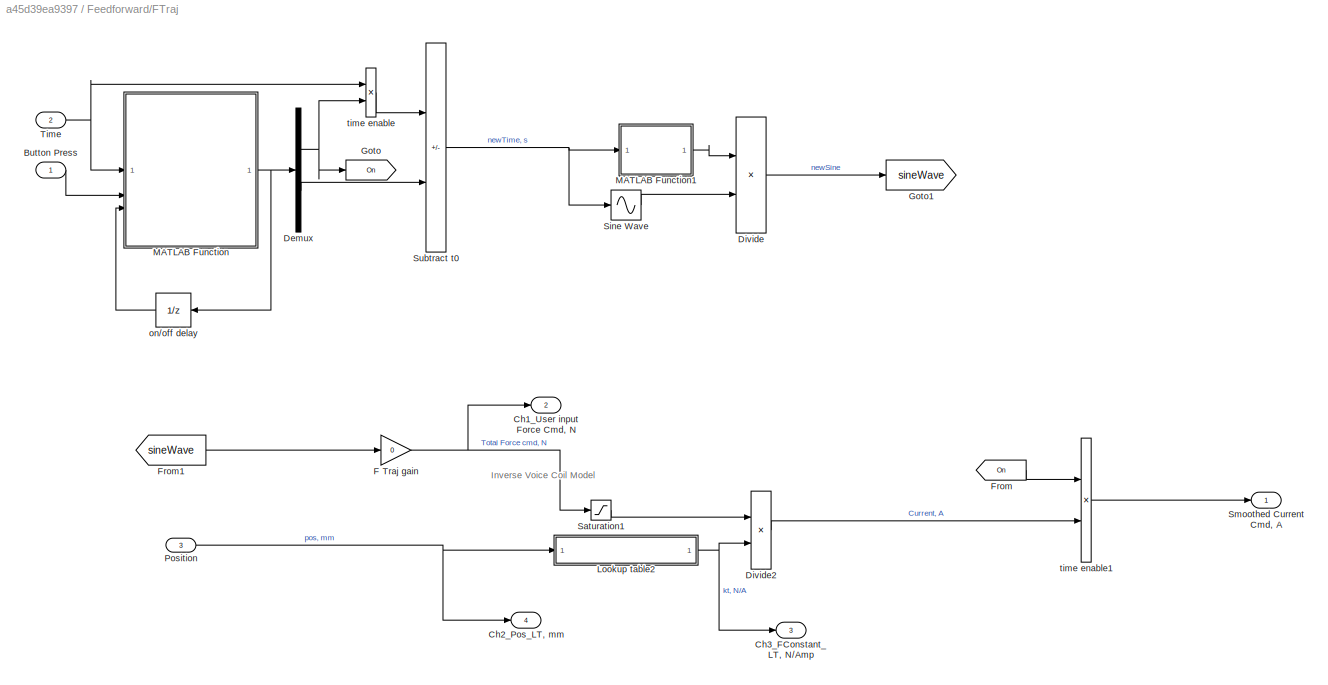
BLOCK [SubSystem] Feedforward/FTraj 
  VariantControl = FF_FTRAJ_VSS
BLOCK [Inport] Feedforward/FTraj /Button Press
BLOCK [Outport] Feedforward/FTraj /Ch1_User input Force Cmd, N
  Port = 2
BLOCK [Outport] Feedforward/FTraj /Ch2_Pos_LT, mm
  Port = 4
BLOCK [Outport] Feedforward/FTraj /Ch3_FConstant_LT, N//Amp
  Port = 3
BLOCK [Demux] Feedforward/FTraj /Demux
  Outputs = 2
BLOCK [Product] Feedforward/FTraj /Divide
  Inputs = **
BLOCK [Product] Feedforward/FTraj /Divide2
  Inputs = */
BLOCK [Gain] Feedforward/FTraj /F Traj gain
  Gain = 0
BLOCK [From] Feedforward/FTraj /From
  GotoTag = On
BLOCK [From] Feedforward/FTraj /From1
  GotoTag = sineWave
BLOCK [Goto] Feedforward/FTraj /Goto
  GotoTag = On
BLOCK [Goto] Feedforward/FTraj /Goto1
  GotoTag = sineWave
BLOCK [SubSystem] Feedforward/FTraj /Lookup table2
BLOCK [Lookup_n-D] Feedforward/FTraj /Lookup table2/Lookup with Linear Lagrange Interpolation
  BreakpointsForDimension1 = xData
  InputPortMap = u0
  InternalRulePriority = Speed
  InterpMethod = Linear Lagrange
  NumberOfTableDimensions = 1
  RndMeth = Simplest
  Table = yData
BLOCK [Inport] Feedforward/FTraj /Lookup table2/Position Input, mm
BLOCK [Outport] Feedforward/FTraj /Lookup table2/Slope (N//amp)
BLOCK [SubSystem] Feedforward/FTraj /MATLAB Function
  ErrorFcn = Stateflow.Translate.translate
  PermitHierarchicalResolution = ExplicitOnly
  SFBlockType = MATLAB Function
  TreatAsAtomicUnit = on
BLOCK [Demux] Feedforward/FTraj /MATLAB Function/ Demux 
  Outputs = 1
BLOCK [S-Function] Feedforward/FTraj /MATLAB Function/ SFunction 
  EnableBusSupport = on
  FunctionName = sf_sfun
  PortCounts = [3 2]
  SFcnIsStateOwnerBlock = off
  SFunctionDeploymentMode = off
  Tag = Stateflow S-Function 5
BLOCK [Terminator] Feedforward/FTraj /MATLAB Function/ Terminator 
BLOCK [Inport] Feedforward/FTraj /MATLAB Function/buttonPress
  Port = 2
BLOCK [Outport] Feedforward/FTraj /MATLAB Function/stateNew
BLOCK [Inport] Feedforward/FTraj /MATLAB Function/stateOld
  Port = 3
BLOCK [Inport] Feedforward/FTraj /MATLAB Function/time
BLOCK [SubSystem] Feedforward/FTraj /MATLAB Function1
  ErrorFcn = Stateflow.Translate.translate
  PermitHierarchicalResolution = ExplicitOnly
  SFBlockType = MATLAB Function
  TreatAsAtomicUnit = on
BLOCK [Demux] Feedforward/FTraj /MATLAB Function1/ Demux 
  Outputs = 1
BLOCK [S-Function] Feedforward/FTraj /MATLAB Function1/ SFunction 
  EnableBusSupport = on
  FunctionName = sf_sfun
  Parameters = T
  PortCounts = [1 2]
  SFcnIsStateOwnerBlock = off
  SFunctionDeploymentMode = off
  Tag = Stateflow S-Function 8
BLOCK [Terminator] Feedforward/FTraj /MATLAB Function1/ Terminator 
BLOCK [Inport] Feedforward/FTraj /MATLAB Function1/t
BLOCK [Outport] Feedforward/FTraj /MATLAB Function1/y
BLOCK [Inport] Feedforward/FTraj /Position
  Port = 3
BLOCK [Saturate] Feedforward/FTraj /Saturation1
  LowerLimit = -fIN.Forcemax
  UpperLimit = fIN.Forcemax
BLOCK [Sin] Feedforward/FTraj /Sine Wave
  Amplitude = ampN
  Frequency = fHz*2*pi
  SampleTime = 0
  TimeSource = Use external signal
BLOCK [Outport] Feedforward/FTraj /Smoothed Current Cmd, A
BLOCK [Sum] Feedforward/FTraj /Subtract t0
  IconShape = rectangular
  Inputs = +-
BLOCK [Inport] Feedforward/FTraj /Time
  Port = 2
BLOCK [UnitDelay] Feedforward/FTraj /on//off delay
  AttributesFormatString = IC: %<X0>
  HasFrameUpgradeWarning = on
  InitialCondition = [0, 0]
  NameLocation = top
  SampleTime = -1
BLOCK [Product] Feedforward/FTraj /time enable
  Inputs = **
BLOCK [Product] Feedforward/FTraj /time enable1
  Inputs = **
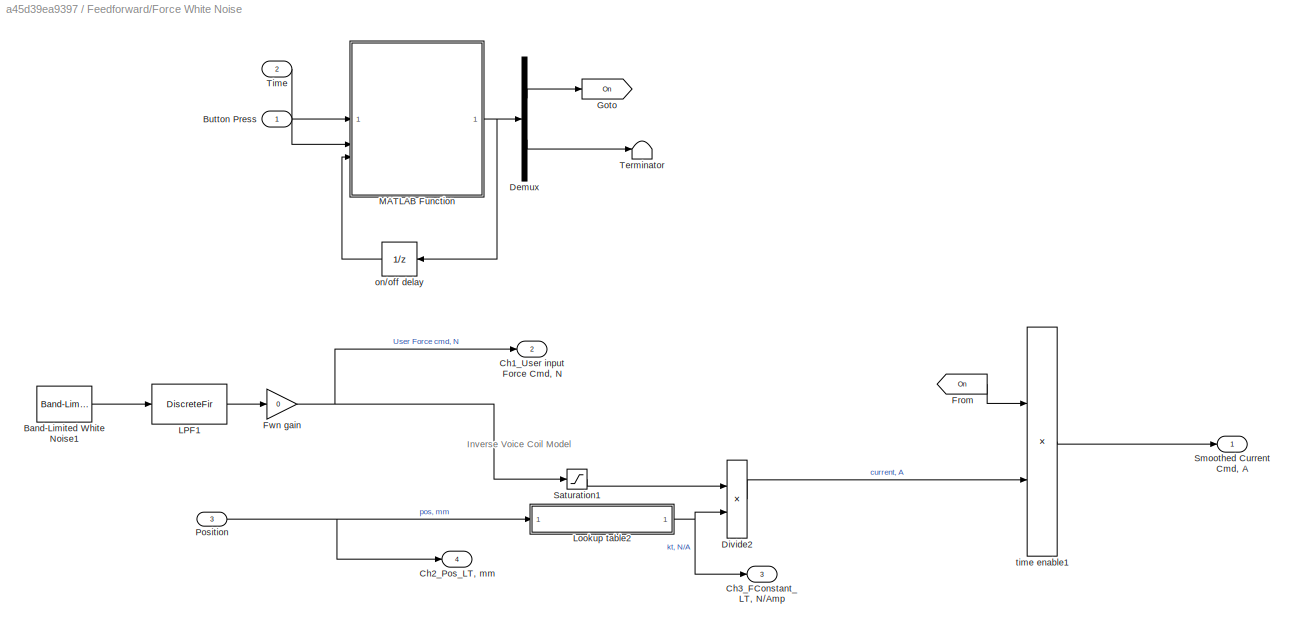
BLOCK [SubSystem] Feedforward/Force White Noise 
  VariantControl = FF_FWN_VSS
BLOCK [Reference] Feedforward/Force White Noise /Band-Limited White Noise1  REF=simulink/Sources/Band-Limited
White Noise
  SourceBlock = simulink/Sources/Band-Limited\nWhite Noise
  SourceType = Band-Limited White Noise.
BLOCK [Inport] Feedforward/Force White Noise /Button Press
BLOCK [Outport] Feedforward/Force White Noise /Ch1_User input Force Cmd, N
  Port = 2
BLOCK [Outport] Feedforward/Force White Noise /Ch2_Pos_LT, mm
  Port = 4
BLOCK [Outport] Feedforward/Force White Noise /Ch3_FConstant_LT, N//Amp
  Port = 3
BLOCK [Demux] Feedforward/Force White Noise /Demux
  Outputs = 2
BLOCK [Product] Feedforward/Force White Noise /Divide2
  Inputs = */
BLOCK [From] Feedforward/Force White Noise /From
  GotoTag = On
BLOCK [Gain] Feedforward/Force White Noise /Fwn gain
  Gain = 0
BLOCK [Goto] Feedforward/Force White Noise /Goto
  GotoTag = On
BLOCK [DiscreteFir] Feedforward/Force White Noise /LPF1
  Coefficients = [0.00631128081582466201 0.00013543430278497223 0.000136870196923014959 0.000138307894980391801 0.000139745838967405081 0.000141180859676371512 0.000142612008190714297 0.000144041366817015644 0.000145467420040382801 0.000146886341234289024 0.000148298674128573299 0.00014970828980578161 0.000151105462927332546 0.000152485453613127584 0.000153856505328838031 0.000155204886984408868 0.0001565376147092...<+33654ch>
  InputPortMap = u0
  InputProcessing = Columns as channels (frame based)
  OutputPortMap = o0
  Tag = BlockMethodSubSystem
BLOCK [SubSystem] Feedforward/Force White Noise /Lookup table2
BLOCK [Lookup_n-D] Feedforward/Force White Noise /Lookup table2/Lookup with Linear Lagrange Interpolation
  BreakpointsForDimension1 = xData
  InputPortMap = u0
  InternalRulePriority = Speed
  InterpMethod = Linear Lagrange
  NumberOfTableDimensions = 1
  RndMeth = Simplest
  Table = yData
BLOCK [Inport] Feedforward/Force White Noise /Lookup table2/Position Input, mm
BLOCK [Outport] Feedforward/Force White Noise /Lookup table2/Slope (N//amp)
BLOCK [SubSystem] Feedforward/Force White Noise /MATLAB Function
  ErrorFcn = Stateflow.Translate.translate
  PermitHierarchicalResolution = ExplicitOnly
  SFBlockType = MATLAB Function
  TreatAsAtomicUnit = on
BLOCK [Demux] Feedforward/Force White Noise /MATLAB Function/ Demux 
  Outputs = 1
BLOCK [S-Function] Feedforward/Force White Noise /MATLAB Function/ SFunction 
  EnableBusSupport = on
  FunctionName = sf_sfun
  PortCounts = [3 2]
  SFcnIsStateOwnerBlock = off
  SFunctionDeploymentMode = off
  Tag = Stateflow S-Function 6
BLOCK [Terminator] Feedforward/Force White Noise /MATLAB Function/ Terminator 
BLOCK [Inport] Feedforward/Force White Noise /MATLAB Function/buttonPress
  Port = 2
BLOCK [Outport] Feedforward/Force White Noise /MATLAB Function/stateNew
BLOCK [Inport] Feedforward/Force White Noise /MATLAB Function/stateOld
  Port = 3
BLOCK [Inport] Feedforward/Force White Noise /MATLAB Function/time
BLOCK [Inport] Feedforward/Force White Noise /Position
  Port = 3
BLOCK [Saturate] Feedforward/Force White Noise /Saturation1
  LowerLimit = -fIN.Forcemax
  UpperLimit = fIN.Forcemax
BLOCK [Outport] Feedforward/Force White Noise /Smoothed Current Cmd, A
BLOCK [Terminator] Feedforward/Force White Noise /Terminator
BLOCK [Inport] Feedforward/Force White Noise /Time
  Port = 2
BLOCK [UnitDelay] Feedforward/Force White Noise /on//off delay
  AttributesFormatString = IC: %<X0>
  HasFrameUpgradeWarning = on
  InitialCondition = [0, 0]
  NameLocation = top
  SampleTime = -1
BLOCK [Product] Feedforward/Force White Noise /time enable1
  Inputs = **
BLOCK [Inport] Feedforward/Position
  Port = 3
BLOCK [SubSystem] Feedforward/Sine Wave
  VariantControl = FF_SINE_VSS
BLOCK [Inport] Feedforward/Sine Wave/Button Press
BLOCK [SubSystem] Feedforward/Sine Wave/MATLAB Function
  ErrorFcn = Stateflow.Translate.translate
  PermitHierarchicalResolution = ExplicitOnly
  SFBlockType = MATLAB Function
  TreatAsAtomicUnit = on
BLOCK [Demux] Feedforward/Sine Wave/MATLAB Function/ Demux 
  Outputs = 1
BLOCK [S-Function] Feedforward/Sine Wave/MATLAB Function/ SFunction 
  EnableBusSupport = on
  FunctionName = sf_sfun
  Parameters = ff
  PortCounts = [3 3]
  SFcnIsStateOwnerBlock = off
  SFunctionDeploymentMode = off
  Tag = Stateflow S-Function 4
BLOCK [Terminator] Feedforward/Sine Wave/MATLAB Function/ Terminator 
BLOCK [Inport] Feedforward/Sine Wave/MATLAB Function/buttonPress
BLOCK [Outport] Feedforward/Sine Wave/MATLAB Function/stateNew
  Port = 2
BLOCK [Inport] Feedforward/Sine Wave/MATLAB Function/stateOld
  Port = 3
BLOCK [Inport] Feedforward/Sine Wave/MATLAB Function/time
  Port = 2
BLOCK [Outport] Feedforward/Sine Wave/MATLAB Function/yOut
BLOCK [Outport] Feedforward/Sine Wave/Smoothed Current Cmd, A
BLOCK [Inport] Feedforward/Sine Wave/Time
  Port = 2
BLOCK [UnitDelay] Feedforward/Sine Wave/unit delay
  AttributesFormatString = IC: %<X0>
  HasFrameUpgradeWarning = on
  InitialCondition = [0, 0]
  NameLocation = top
  SampleTime = -1
BLOCK [Outport] Feedforward/Smoothed Current Cmd, A
BLOCK [Inport] Feedforward/Time
  Port = 2
BLOCK [SubSystem] Feedforward/Traj
  VariantControl = FF_TRAJ_VSS
BLOCK [Inport] Feedforward/Traj/Button Press
BLOCK [Demux] Feedforward/Traj/Demux
  Outputs = 2
BLOCK [From] Feedforward/Traj/From
  GotoTag = On
BLOCK [Goto] Feedforward/Traj/Goto
  GotoTag = On
BLOCK [SubSystem] Feedforward/Traj/MATLAB Function
  ErrorFcn = Stateflow.Translate.translate
  PermitHierarchicalResolution = ExplicitOnly
  SFBlockType = MATLAB Function
  TreatAsAtomicUnit = on
BLOCK [Demux] Feedforward/Traj/MATLAB Function/ Demux 
  Outputs = 1
BLOCK [S-Function] Feedforward/Traj/MATLAB Function/ SFunction 
  EnableBusSupport = on
  FunctionName = sf_sfun
  PortCounts = [3 2]
  SFcnIsStateOwnerBlock = off
  SFunctionDeploymentMode = off
  Tag = Stateflow S-Function 3
BLOCK [Terminator] Feedforward/Traj/MATLAB Function/ Terminator 
BLOCK [Inport] Feedforward/Traj/MATLAB Function/buttonPress
  Port = 2
BLOCK [Outport] Feedforward/Traj/MATLAB Function/stateNew
BLOCK [Inport] Feedforward/Traj/MATLAB Function/stateOld
  Port = 3
BLOCK [Inport] Feedforward/Traj/MATLAB Function/time
BLOCK [Outport] Feedforward/Traj/Smoothed Current Cmd, A
BLOCK [Sum] Feedforward/Traj/Subtract t0
  IconShape = rectangular
  Inputs = +-
BLOCK [Reference] Feedforward/Traj/Table Lookup  REF=simulink/Lookup
Tables/Lookup
Table
Dynamic
  SourceBlock = simulink/Lookup\nTables/Lookup\nTable\nDynamic
  SourceType = Lookup Table Dynamic
BLOCK [Inport] Feedforward/Traj/Time
  Port = 2
BLOCK [Constant] Feedforward/Traj/Traj Current
  Value = trajData.z
BLOCK [Constant] Feedforward/Traj/Traj Time
  Value = trajData.t
BLOCK [Gain] Feedforward/Traj/Traj gain
  Gain = 0.075
BLOCK [UnitDelay] Feedforward/Traj/on//off delay
  AttributesFormatString = IC: %<X0>
  HasFrameUpgradeWarning = on
  InitialCondition = [0, 0]
  NameLocation = top
  SampleTime = -1
BLOCK [Product] Feedforward/Traj/time enable
  Inputs = **
BLOCK [Product] Feedforward/Traj/time enable1
  Inputs = **
BLOCK [SubSystem] Feedforward/White Noise
  VariantControl = FF_NOIZ_VSS
BLOCK [Inport] Feedforward/White Noise/Button Press
BLOCK [Demux] Feedforward/White Noise/Demux
  Outputs = 2
BLOCK [From] Feedforward/White Noise/From
  GotoTag = On
BLOCK [Goto] Feedforward/White Noise/Goto
  GotoTag = On
BLOCK [SubSystem] Feedforward/White Noise/MATLAB Function
  ErrorFcn = Stateflow.Translate.translate
  PermitHierarchicalResolution = ExplicitOnly
  SFBlockType = MATLAB Function
  TreatAsAtomicUnit = on
BLOCK [Demux] Feedforward/White Noise/MATLAB Function/ Demux 
  Outputs = 1
BLOCK [S-Function] Feedforward/White Noise/MATLAB Function/ SFunction 
  EnableBusSupport = on
  FunctionName = sf_sfun
  PortCounts = [3 2]
  SFcnIsStateOwnerBlock = off
  SFunctionDeploymentMode = off
  Tag = Stateflow S-Function 1
BLOCK [Terminator] Feedforward/White Noise/MATLAB Function/ Terminator 
BLOCK [Inport] Feedforward/White Noise/MATLAB Function/buttonPress
  Port = 2
BLOCK [Outport] Feedforward/White Noise/MATLAB Function/stateNew
BLOCK [Inport] Feedforward/White Noise/MATLAB Function/stateOld
  Port = 3
BLOCK [Inport] Feedforward/White Noise/MATLAB Function/time
BLOCK [Outport] Feedforward/White Noise/Smoothed Current Cmd, A
BLOCK [Sum] Feedforward/White Noise/Subtract t0
  IconShape = rectangular
  Inputs = +-
BLOCK [Reference] Feedforward/White Noise/Table Lookup  REF=simulink/Lookup
Tables/Lookup
Table
Dynamic
  SourceBlock = simulink/Lookup\nTables/Lookup\nTable\nDynamic
  SourceType = Lookup Table Dynamic
BLOCK [Inport] Feedforward/White Noise/Time
  Port = 2
BLOCK [Constant] Feedforward/White Noise/WN Current
  Value = wn.y
BLOCK [Constant] Feedforward/White Noise/WN Time
  Value = wn.t
BLOCK [UnitDelay] Feedforward/White Noise/on//off delay
  AttributesFormatString = IC: %<X0>
  HasFrameUpgradeWarning = on
  InitialCondition = [0, 0]
  NameLocation = top
  SampleTime = -1
BLOCK [Product] Feedforward/White Noise/time enable
  Inputs = **
BLOCK [Product] Feedforward/White Noise/time enable1
  Inputs = **
BLOCK [Gain] Feedforward/White Noise/white noise gain
  Gain = 0
BLOCK [SubSystem] Feedforward/Zero
  VariantControl = FF_ZERO_VSS
BLOCK [Inport] Feedforward/Zero/Button Press
BLOCK [Constant] Feedforward/Zero/Constant
  Value = 0
BLOCK [Outport] Feedforward/Zero/Smoothed Current Cmd, A
BLOCK [Terminator] Feedforward/Zero/Terminator
BLOCK [Inport] Feedforward/Zero/Time
  Port = 2
BLOCK [Constant] Git Test
  Value = 0
BLOCK [Gain] Inverse LCAM Gain (V//A)
  Gain = 1/lcam.gain
BLOCK [SubSystem] LCAM Current Sense
BLOCK [Gain] LCAM Current Sense/Gain
  AttributesFormatString = %<Gain>
  Gain = lcam.v2i
BLOCK [Reference] LCAM Current Sense/LCAM Current Sense  REF=rti1202lib_adc_class1/ADC_CLASS1_BL1
  SourceBlock = rti1202lib_adc_class1/ADC_CLASS1_BL1
  SourceType = RTI
BLOCK [Gain] LCAM Current Sense/LCAM Current Sense, v
  Gain = 10
BLOCK [Outport] LCAM Current Sense/Measured Current, Amp
BLOCK [SubSystem] Laser Sensor
BLOCK [Outport] Laser Sensor/AnalogDisplacementLaser, mm
BLOCK [Reference] Laser Sensor/Laser Sensor  REF=rti1202lib_adc_class1/ADC_CLASS1_BL1
  SourceBlock = rti1202lib_adc_class1/ADC_CLASS1_BL1
  SourceType = RTI
BLOCK [Gain] Laser Sensor/Voltage Map
  Gain = 10
BLOCK [Gain] Laser Sensor/dSpace Gain
  Gain = 10
BLOCK [SubSystem] Load Cell
BLOCK [Sum] Load Cell/Add
  IconShape = rectangular
BLOCK [Constant] Load Cell/Constant
  Value = lc.b
BLOCK [Gain] Load Cell/Gain
  Gain = lc.k
BLOCK [Gain] Load Cell/Gain1
  Gain = lc.s
BLOCK [Gain] Load Cell/LC, v
  Gain = 10
BLOCK [Reference] Load Cell/Load Cell Voltage  REF=rti1202lib_adc_class1/ADC_CLASS1_BL1
  SourceBlock = rti1202lib_adc_class1/ADC_CLASS1_BL1
  SourceType = RTI
BLOCK [Outport] Load Cell/Measured Force, N
BLOCK [Outport] MCh_Draft Force cmd, A
  Port = 17
BLOCK [Outport] MCh_FB Current Cmd, A
  Port = 2
BLOCK [Outport] MCh_FF Current Cmd, A
BLOCK [Outport] MCh_LCAM Current, A
  Port = 3
BLOCK [Outport] MCh_Load Cell Force, N
  Port = 4
BLOCK [Outport] MCh_MagCurCmd, A
  Port = 18
BLOCK [Outport] MCh_MagForceCmd, N
  Port = 19
BLOCK [Outport] MCh_Total Current Cmd, A
  Port = 5
BLOCK [Outport] MCh_Total Voltage Cmd, V
  Port = 15
BLOCK [SubSystem] Magnetic field cancellation
  VariantControl = FF_FCONS_VSS
BLOCK [Product] Magnetic field cancellation/Divide2
  Inputs = */
BLOCK [Outport] Magnetic field cancellation/FF Current Cmd, A
BLOCK [SubSystem] Magnetic field cancellation/Look up-Meg
BLOCK [Outport] Magnetic field cancellation/Look up-Meg/Force meg, N
BLOCK [Lookup_n-D] Magnetic field cancellation/Look up-Meg/Lookup with Linear Lagrange Interpolation1
  BreakpointsForDimension1 = Mag_xData
  InputPortMap = u0
  InternalRulePriority = Speed
  InterpMethod = Linear Lagrange
  NumberOfTableDimensions = 1
  RndMeth = Simplest
  Table = Mag_yData
BLOCK [Inport] Magnetic field cancellation/Look up-Meg/pos
BLOCK [SubSystem] Magnetic field cancellation/Lookup - Slope
BLOCK [Lookup_n-D] Magnetic field cancellation/Lookup - Slope/Lookup with Linear Lagrange Interpolation
  BreakpointsForDimension1 = xData
  InputPortMap = u0
  InternalRulePriority = Speed
  InterpMethod = Linear Lagrange
  NumberOfTableDimensions = 1
  RndMeth = Simplest
  Table = yData
BLOCK [Inport] Magnetic field cancellation/Lookup - Slope/Position Input, mm
BLOCK [Outport] Magnetic field cancellation/Lookup - Slope/Slope (N//amp)
BLOCK [Outport] Magnetic field cancellation/MCh_Mag Force cmd, N
  Port = 2
BLOCK [Inport] Magnetic field cancellation/Position
BLOCK [Saturate] Magnetic field cancellation/Saturation1
  LowerLimit = -fIN.Forcemax
  UpperLimit = fIN.Forcemax
BLOCK [Outport] Measured VC, Volt 
  Port = 10
BLOCK [Outport] Mec Energy, Joule
  Port = 9
BLOCK [Saturate] Position Saturation 
  LowerLimit = z_TDC
  UpperLimit = z_stroke+z_TDC
BLOCK [Reference] Power Supply Voltage  REF=rti1202lib_adc_class1/ADC_CLASS1_BL1
  Commented = on
  SourceBlock = rti1202lib_adc_class1/ADC_CLASS1_BL1
  SourceType = RTI
BLOCK [Outport] Power, Watt
  Port = 13
BLOCK [SubSystem] RTI Data
  CopyFcn = if exist('rtidc'), try,  rtidc('DataHostBlockClbCopy', gcbh); catch, disp(['Warning: ''CopyFcn'' for RTI Data block failed: ' lasterr]); end, end,
  DeleteFcn = if exist('rtidc'), try,  rtidc('DataHostBlockClbDelete', gcbh); catch, disp(['Warning: ''DeleteFcn'' for RTI Data block failed: ' lasterr]); end, end,
  LoadFcn = if exist('rtidc'), try,  rtidc('DataHostBlockClbLoad', gcbh); catch, disp(['Warning: ''LoadFcn'' for RTI Data block failed: ' lasterr]); end, end,
  ModelCloseFcn = if exist('rtidc'), try,  rtidc('DataHostBlockClbModelClose', gcbh); catch, disp(['Warning: ''ModelCloseFcn'' for RTI Data block failed: ' lasterr]); end, end,
  NameChangeFcn = if exist('rtidc'), try,  rtidc('DataHostBlockClbNameChange', gcbh); catch, disp(['Warning: ''NameChangeFcn'' for RTI Data block failed: ' lasterr]); end, end,
  PostSaveFcn = if exist('rtidc'), try,  rtidc('DataHostBlockClbPostSave', gcbh); catch, disp(['Warning: ''PostSaveFcn'' for RTI Data block failed: ' lasterr]); end, end,
  PreSaveFcn = if exist('rtidc'), try,  rtidc('DataHostBlockClbPreSave', gcbh); catch, disp(['Warning: ''PreSaveFcn'' for RTI Data block failed: ' lasterr]); end, end,
  Tag = struct('RTIDataServer',struct('RTIDataServerVs','2','RTIModelDescription','struct(''main'',''LFT_model_Sweep_10_21_25'',''sub'','''',''isMp'',0)'))
BLOCK [SubSystem] RTI Data/RTI Data Store
  Tag = struct('private',struct('version',struct('dsVer',uint32(2)),'access',struct('type','Model','isPerm',1)),'public',struct('main',struct('data',[]),'sub',struct('name',{{'LFT_model_Sweep_10_21_25'}},'data',{{struct('TH',struct('thTaskInfo',struct('taskType',{'TIMER','HWINT','TMRINT','SWINT','GLINT'},'tasksNumOf',{1,0,0,0,0},'srcIds',{{'TIMERA'},{},{},{},{}},'taskNames',{{['Timer Task 1']},{},{},{},{}...<+747ch>
BLOCK [SubSystem] RTI Data/RTI Data Store/RTI Data Store
BLOCK [SubSystem] RTI Data/RTI Data Store/RTI Data Store/RTI Data Store
BLOCK [SubSystem] RTI Data/RTI Data Store/RTI Data Store/RTI Data Store/RTI Data Store
BLOCK [Constant] Record
  Value = 0
BLOCK [Clock] Run Time
BLOCK [Constant] Start Test
  Value = 0
BLOCK [SubSystem] Subsystem
BLOCK [Outport] Subsystem/ Electric Power, Watt
  Port = 2
BLOCK [Product] Subsystem/Divide
  Inputs = **
BLOCK [Outport] Subsystem/Electric Energy, Joule 
BLOCK [Inport] Subsystem/In1
BLOCK [Inport] Subsystem/In2
  Port = 2
BLOCK [Integrator] Subsystem/Integrator
BLOCK [Sum] Sum Current Cmds
  IconShape = rectangular
  Inputs = +++++
BLOCK [Outport] Supplied Volts,V 
  Port = 23
  SignalName = Voltage Supply
BLOCK [Outport] Sweep Force Cmd
  Port = 24
BLOCK [SubSystem] Sweep Test
BLOCK [Outport] Sweep Test/Ch2_Pos_LT, mm1
  Port = 3
BLOCK [Clock] Sweep Test/Clock
BLOCK [Outport] Sweep Test/Current, A
  Port = 2
BLOCK [SubSystem] Sweep Test/MATLAB Function
  ErrorFcn = Stateflow.Translate.translate
  PermitHierarchicalResolution = ExplicitOnly
  SFBlockType = MATLAB Function
  TreatAsAtomicUnit = on
BLOCK [Demux] Sweep Test/MATLAB Function/ Demux 
  Outputs = 1
BLOCK [S-Function] Sweep Test/MATLAB Function/ SFunction 
  EnableBusSupport = on
  FunctionName = sf_sfun
  Parameters = cycles,freqs
  PortCounts = [4 3]
  SFcnIsStateOwnerBlock = off
  SFunctionDeploymentMode = off
  Tag = Stateflow S-Function 2
BLOCK [Terminator] Sweep Test/MATLAB Function/ Terminator 
BLOCK [Inport] Sweep Test/MATLAB Function/bPush
  Port = 2
BLOCK [Inport] Sweep Test/MATLAB Function/eStop
BLOCK [Inport] Sweep Test/MATLAB Function/tIn
  Port = 3
BLOCK [Inport] Sweep Test/MATLAB Function/x0
  Port = 4
BLOCK [Outport] Sweep Test/MATLAB Function/x1
  Port = 2
BLOCK [Outport] Sweep Test/MATLAB Function/y
BLOCK [SubSystem] Sweep Test/Subsystem1
BLOCK [Outport] Sweep Test/Subsystem1/Ch2_Pos_LT, mm1
  Port = 3
BLOCK [Outport] Sweep Test/Subsystem1/Current, A
  Port = 2
BLOCK [Product] Sweep Test/Subsystem1/Divide2
  Inputs = */
BLOCK [SubSystem] Sweep Test/Subsystem1/Lookup table2
BLOCK [Lookup_n-D] Sweep Test/Subsystem1/Lookup table2/Lookup with Linear Lagrange Interpolation
  BreakpointsForDimension1 = xData
  InputPortMap = u0
  InternalRulePriority = Speed
  InterpMethod = Linear Lagrange
  NumberOfTableDimensions = 1
  RndMeth = Simplest
  Table = yData
BLOCK [Inport] Sweep Test/Subsystem1/Lookup table2/Position Input, mm
BLOCK [Outport] Sweep Test/Subsystem1/Lookup table2/Slope (N//amp)
BLOCK [Inport] Sweep Test/Subsystem1/Position
BLOCK [Saturate] Sweep Test/Subsystem1/Saturation1
  LowerLimit = -fIN.Forcemax
  UpperLimit = fIN.Forcemax
BLOCK [Outport] Sweep Test/Subsystem1/Sweep Force Cmd, N
BLOCK [Inport] Sweep Test/Subsystem1/Sweep Force Input
  Port = 2
BLOCK [Outport] Sweep Test/Sweep Force Cmd
BLOCK [Constant] Sweep Test/Sweep Start
  Value = 0
BLOCK [Constant] Sweep Test/Sweep eStop
  Value = 0
BLOCK [UnitDelay] Sweep Test/Unit Delay
  HasFrameUpgradeWarning = on
  InitialCondition = [0,0,0]
  SampleTime = -1
BLOCK [Inport] Sweep Test/pos, mm
BLOCK [Terminator] Terminator
BLOCK [Terminator] Terminator1
BLOCK [Outport] Trans Current VC, Amp
  Port = 21
BLOCK [Outport] Trans Measured VC, Volt 
  Port = 20
BLOCK [SubSystem] Trans current  Sense1
BLOCK [Reference] Trans current  Sense1/Transducer Voltage  REF=rti1202lib_adc_class1/ADC_CLASS1_BL1
  SourceBlock = rti1202lib_adc_class1/ADC_CLASS1_BL1
  SourceType = RTI
BLOCK [Gain] Trans current  Sense1/Transducer gain for current 
  Gain = 1/4
BLOCK [Outport] Trans current  Sense1/Transducer, Current 
  Port = 2
BLOCK [Outport] Trans current  Sense1/Transducer, Volt 
BLOCK [Gain] Trans current  Sense1/dSPACE Gain
  Gain = 10
BLOCK [SubSystem] Trigger
BLOCK [DataTypeConversion] Trigger Enable
  Commented = on
  OutDataTypeStr = boolean
  RndMeth = Floor
  SaturateOnIntegerOverflow = off
BLOCK [Reference] Trigger/DIO Trigger Paddles  REF=rti1202lib_dio_class1/DIO_CLASS1_BIT_OUT_BL1
  SourceBlock = rti1202lib_dio_class1/DIO_CLASS1_BIT_OUT_BL1
  SourceType = RTI
BLOCK [Reference] Trigger/DIO Trigger Qualisys  REF=rti1202lib_dio_class1/DIO_CLASS1_BIT_OUT_BL1
  SourceBlock = rti1202lib_dio_class1/DIO_CLASS1_BIT_OUT_BL1
  SourceType = RTI
BLOCK [DataTypeConversion] Trigger/Trigger Qualisys
  OutDataTypeStr = boolean
  RndMeth = Floor
  SaturateOnIntegerOverflow = off
BLOCK [Inport] Trigger/Trigger Qualisys and Paddles
BLOCK [DataTypeConversion] Trigger/Trigger Wavemaker
  OutDataTypeStr = boolean
  RndMeth = Floor
  SaturateOnIntegerOverflow = off
BLOCK [Gain] Trigger/Use Qualisys
  Gain = 0
BLOCK [Gain] Trigger/Use Wavemaker
  Gain = 0
BLOCK [Gain] Use LFW (GUI switch)
  Gain = 0
BLOCK [SubSystem] VC Voltage Sense
BLOCK [Gain] VC Voltage Sense/Gain
  Gain = 10.2
BLOCK [Outport] VC Voltage Sense/Measured VC, Volt 
BLOCK [Reference] VC Voltage Sense/VC Voltage  REF=rti1202lib_adc_class1/ADC_CLASS1_BL1
  SourceBlock = rti1202lib_adc_class1/ADC_CLASS1_BL1
  SourceType = RTI
BLOCK [Gain] VC Voltage Sense/dSPACE Gain
  Gain = 10
BLOCK [Outport] Velocity, m//s
  Port = 14
BLOCK [Gain] dSPACE Gain
  Gain = .1
ANNOTATION (root): <userpath>\Desktop\Wave_lab_files\1_dSpace_scripts\1_LFT\LFT_VF_V7_rev2\LFT_Dspace\IOCheck\Measurement Data
ANNOTATION (root): TC55_VCsine_A04_F005
ANNOTATION Draft Force : Inverse Voice Coil Model
ANNOTATION Feedbackward Current/Damping Feedback: Energy Generation
ANNOTATION Feedbackward Current/Damping Feedback: Inverse Voice Coil Model
ANNOTATION Feedforward: Current input
ANNOTATION Feedforward: Force Input
ANNOTATION Feedforward/FConstant: Inverse Voice Coil Model
ANNOTATION Feedforward/FTraj : Inverse Voice Coil Model
ANNOTATION Feedforward/Force White Noise : Inverse Voice Coil Model
ANNOTATION Laser Sensor: Note : Sensor outputs 0-10V, ranging from 0-100 mm. This "Voltage Map" converts the 0-10V reading to a 0-100 mm reading.
ANNOTATION Laser Sensor: The data read from the laser sensor is 0 at TDC and 85 at BDC, the changes are made to achive the configuration of 42.5 at TDC and -42.5 at BDC, where as Mid point is zero
ANNOTATION Magnetic field cancellation: Inverse Voice Coil Model
ANNOTATION Subsystem: Electric Energy Generation
ANNOTATION Sweep Test: Change amplitude inside the function "amp"
ANNOTATION Sweep Test/Subsystem1: Inverse Voice Coil Model
LINE  Use Draft force (GUI switch):1 -> Sum Current Cmds:3
LINE  Use Feedbackward (GUI switch):1 -> Sum Current Cmds:2
LINE  Use Feedforward (GUI switch):1 -> Sum Current Cmds:1
LINE  Use Mag cancellation (GUI switch):1 -> Sum Current Cmds:4
LINE  Use Sweep (GUI switch):1 -> Sum Current Cmds:5
LINE Accelerometer/Acc Button:1 -> Accelerometer/Triggered Subsystem:trigger
LINE Accelerometer/Accelerometer:1 -> Accelerometer/Transfer Fcn:1
NET Accelerometer/Gain1:1 -> Accelerometer/Accelerometer Voltage, V:1, Accelerometer/Gain:1
LINE Accelerometer/Gain:1 -> Accelerometer/Accelerometer Acceleration, m//s^2:1
LINE Accelerometer/Offset Voltage, V:1 -> Accelerometer/Sum:2
LINE Accelerometer/Sum:1 -> Accelerometer/Gain1:1
NET Accelerometer/Transfer Fcn:1 -> Accelerometer/Sum:1, Accelerometer/Triggered Subsystem:1
LINE Accelerometer/Triggered Subsystem/In1:1 -> Accelerometer/Triggered Subsystem/Data Store Write:1
LINE Accelerometer:1 -> Accelerometer Voltage, V:1
LINE Accelerometer:2 -> Accelerometer Acceleration, m//s^2:1
LINE Current Saturation :1 -> Use LFW (GUI switch):1
LINE Draft Force /Divide2:1 -> Draft Force /smoother:1
LINE Draft Force /Draft_Force_cmd_N:1 -> Draft Force /Saturation1:1
LINE Draft Force /Lookup - Slope/Lookup with Linear Lagrange Interpolation:1 -> Draft Force /Lookup - Slope/Slope (N//amp):1
LINE Draft Force /Lookup - Slope/Position Input, mm:1 -> Draft Force /Lookup - Slope/Lookup with Linear Lagrange Interpolation:1
LINE Draft Force /Lookup - Slope:1 -> Draft Force /Divide2:2
LINE Draft Force /Position:1 -> Draft Force /Lookup - Slope:1
LINE Draft Force /Saturation1:1 -> Draft Force /Divide2:1
LINE Draft Force /smoother1:1 -> Draft Force /FF Current Cmd, A:1
LINE Draft Force /smoother:1 -> Draft Force /smoother1:1
NET Draft Force :1 ->  Use Draft force (GUI switch):1, MCh_Draft Force cmd, A:1
LINE Dspace Gain:1 -> Supplied Volts,V :1
LINE Enable Switch:1 -> Trigger Enable:1
NET Feedbackward Current/Damping Feedback/Disp, mm:1 -> Feedbackward Current/Damping Feedback/Lookup table2:1, Feedbackward Current/Damping Feedback/mm to m:1
LINE Feedbackward Current/Damping Feedback/Divide2:1 -> Feedbackward Current/Damping Feedback/FB Current Cmd, A:1
LINE Feedbackward Current/Damping Feedback/Integrator:1 -> Feedbackward Current/Damping Feedback/Energy, Joule :1
NET Feedbackward Current/Damping Feedback/Kd Gain:1 -> Feedbackward Current/Damping Feedback/Actuation Force, N:1, Feedbackward Current/Damping Feedback/Multiply:2, Feedbackward Current/Damping Feedback/Saturation1:1
LINE Feedbackward Current/Damping Feedback/Lookup table2/Lookup with Linear Lagrange Interpolation:1 -> Feedbackward Current/Damping Feedback/Lookup table2/Slope (N//amp):1
LINE Feedbackward Current/Damping Feedback/Lookup table2/Position Input, mm:1 -> Feedbackward Current/Damping Feedback/Lookup table2/Lookup with Linear Lagrange Interpolation:1
LINE Feedbackward Current/Damping Feedback/Lookup table2:1 -> Feedbackward Current/Damping Feedback/Divide2:2
NET Feedbackward Current/Damping Feedback/Multiply:1 -> Feedbackward Current/Damping Feedback/Integrator:1, Feedbackward Current/Damping Feedback/Power, Watt:1
LINE Feedbackward Current/Damping Feedback/Saturation1:1 -> Feedbackward Current/Damping Feedback/Divide2:1
NET Feedbackward Current/Damping Feedback/Transfer Fcn:1 -> Feedbackward Current/Damping Feedback/Kd Gain:1, Feedbackward Current/Damping Feedback/Multiply:1, Feedbackward Current/Damping Feedback/Velocity, m//s:1
LINE Feedbackward Current/Damping Feedback/mm to m:1 -> Feedbackward Current/Damping Feedback/Transfer Fcn:1
LINE Feedbackward Current/Velocity Feedback/Disp, mm:1 -> Feedbackward Current/Velocity Feedback/Kv:1
LINE Feedbackward Current/Velocity Feedback/Kv:1 -> Feedbackward Current/Velocity Feedback/d//dt:1
LINE Feedbackward Current/Velocity Feedback/LCAM Gain:1 -> Feedbackward Current/Velocity Feedback/FB Current Cmd, A:1
LINE Feedbackward Current/Velocity Feedback/d//dt:1 -> Feedbackward Current/Velocity Feedback/LCAM Gain:1
LINE Feedbackward Current/Zero/Disp, mm:1 -> Feedbackward Current/Zero/Gain:1
LINE Feedbackward Current/Zero/Gain:1 -> Feedbackward Current/Zero/FB Current Cmd, A:1
NET Feedbackward Current:1 ->  Use Feedbackward (GUI switch):1, MCh_FB Current Cmd, A:1
LINE Feedbackward Current:2 -> Actuation Force, N:1
LINE Feedbackward Current:3 -> Mec Energy, Joule:1
LINE Feedbackward Current:4 -> Power, Watt:1
LINE Feedbackward Current:5 -> Velocity, m//s:1
LINE Feedforward/Constant/Button Press:1 -> Feedforward/Constant/Current Cmd, A:1
LINE Feedforward/Constant/Current Cmd, A:1 -> Feedforward/Constant/smoother:1
LINE Feedforward/Constant/Time:1 -> Feedforward/Constant/Terminator:1
LINE Feedforward/Constant/smoother1:1 -> Feedforward/Constant/Smoothed Current Cmd, A:1
LINE Feedforward/Constant/smoother:1 -> Feedforward/Constant/smoother1:1
LINE Feedforward/FConstant/Button Press:1 -> Feedforward/FConstant/Const Force Gain:1
NET Feedforward/FConstant/Const Force Gain:1 -> Feedforward/FConstant/Ch1_User input Force Cmd, N:1, Feedforward/FConstant/Saturation1:1
LINE Feedforward/FConstant/Divide2:1 -> Feedforward/FConstant/smoother:1
LINE Feedforward/FConstant/Lookup - Slope/Lookup with Linear Lagrange Interpolation:1 -> Feedforward/FConstant/Lookup - Slope/Slope (N//amp):1
LINE Feedforward/FConstant/Lookup - Slope/Position Input, mm:1 -> Feedforward/FConstant/Lookup - Slope/Lookup with Linear Lagrange Interpolation:1
LINE Feedforward/FConstant/Lookup - Slope:1 -> Feedforward/FConstant/Divide2:2
LINE Feedforward/FConstant/Position:1 -> Feedforward/FConstant/Lookup - Slope:1
LINE Feedforward/FConstant/Saturation1:1 -> Feedforward/FConstant/Divide2:1
LINE Feedforward/FConstant/Time:1 -> Feedforward/FConstant/Terminator:1
LINE Feedforward/FConstant/smoother1:1 -> Feedforward/FConstant/Smoothed Current Cmd, A:1
LINE Feedforward/FConstant/smoother:1 -> Feedforward/FConstant/smoother1:1
LINE Feedforward/FTraj /Button Press:1 -> Feedforward/FTraj /MATLAB Function:2
NET Feedforward/FTraj /Demux:1 -> Feedforward/FTraj /Goto:1, Feedforward/FTraj /time enable:2
LINE Feedforward/FTraj /Demux:2 -> Feedforward/FTraj /Subtract t0:2
LINE Feedforward/FTraj /Divide2:1 -> Feedforward/FTraj /time enable1:2
LINE Feedforward/FTraj /Divide:1 -> Feedforward/FTraj /Goto1:1
NET Feedforward/FTraj /F Traj gain:1 -> Feedforward/FTraj /Ch1_User input Force Cmd, N:1, Feedforward/FTraj /Saturation1:1
LINE Feedforward/FTraj /From1:1 -> Feedforward/FTraj /F Traj gain:1
LINE Feedforward/FTraj /From:1 -> Feedforward/FTraj /time enable1:1
LINE Feedforward/FTraj /Lookup table2/Lookup with Linear Lagrange Interpolation:1 -> Feedforward/FTraj /Lookup table2/Slope (N//amp):1
LINE Feedforward/FTraj /Lookup table2/Position Input, mm:1 -> Feedforward/FTraj /Lookup table2/Lookup with Linear Lagrange Interpolation:1
NET Feedforward/FTraj /Lookup table2:1 -> Feedforward/FTraj /Ch3_FConstant_LT, N//Amp:1, Feedforward/FTraj /Divide2:2
LINE Feedforward/FTraj /MATLAB Function1:1 -> Feedforward/FTraj /Divide:1
NET Feedforward/FTraj /MATLAB Function:1 -> Feedforward/FTraj /Demux:1, Feedforward/FTraj /on//off delay:1
NET Feedforward/FTraj /Position:1 -> Feedforward/FTraj /Ch2_Pos_LT, mm:1, Feedforward/FTraj /Lookup table2:1
LINE Feedforward/FTraj /Saturation1:1 -> Feedforward/FTraj /Divide2:1
LINE Feedforward/FTraj /Sine Wave:1 -> Feedforward/FTraj /Divide:2
NET Feedforward/FTraj /Subtract t0:1 -> Feedforward/FTraj /MATLAB Function1:1, Feedforward/FTraj /Sine Wave:1
NET Feedforward/FTraj /Time:1 -> Feedforward/FTraj /MATLAB Function:1, Feedforward/FTraj /time enable:1
LINE Feedforward/FTraj /on//off delay:1 -> Feedforward/FTraj /MATLAB Function:3
LINE Feedforward/FTraj /time enable1:1 -> Feedforward/FTraj /Smoothed Current Cmd, A:1
LINE Feedforward/FTraj /time enable:1 -> Feedforward/FTraj /Subtract t0:1
LINE Feedforward/Force White Noise /Band-Limited White Noise1:1 -> Feedforward/Force White Noise /LPF1:1
LINE Feedforward/Force White Noise /Button Press:1 -> Feedforward/Force White Noise /MATLAB Function:2
LINE Feedforward/Force White Noise /Demux:1 -> Feedforward/Force White Noise /Goto:1
LINE Feedforward/Force White Noise /Demux:2 -> Feedforward/Force White Noise /Terminator:1
LINE Feedforward/Force White Noise /Divide2:1 -> Feedforward/Force White Noise /time enable1:2
LINE Feedforward/Force White Noise /From:1 -> Feedforward/Force White Noise /time enable1:1
NET Feedforward/Force White Noise /Fwn gain:1 -> Feedforward/Force White Noise /Ch1_User input Force Cmd, N:1, Feedforward/Force White Noise /Saturation1:1
LINE Feedforward/Force White Noise /LPF1:1 -> Feedforward/Force White Noise /Fwn gain:1
LINE Feedforward/Force White Noise /Lookup table2/Lookup with Linear Lagrange Interpolation:1 -> Feedforward/Force White Noise /Lookup table2/Slope (N//amp):1
LINE Feedforward/Force White Noise /Lookup table2/Position Input, mm:1 -> Feedforward/Force White Noise /Lookup table2/Lookup with Linear Lagrange Interpolation:1
NET Feedforward/Force White Noise /Lookup table2:1 -> Feedforward/Force White Noise /Ch3_FConstant_LT, N//Amp:1, Feedforward/Force White Noise /Divide2:2
NET Feedforward/Force White Noise /MATLAB Function:1 -> Feedforward/Force White Noise /Demux:1, Feedforward/Force White Noise /on//off delay:1
NET Feedforward/Force White Noise /Position:1 -> Feedforward/Force White Noise /Ch2_Pos_LT, mm:1, Feedforward/Force White Noise /Lookup table2:1
LINE Feedforward/Force White Noise /Saturation1:1 -> Feedforward/Force White Noise /Divide2:1
LINE Feedforward/Force White Noise /Time:1 -> Feedforward/Force White Noise /MATLAB Function:1
LINE Feedforward/Force White Noise /on//off delay:1 -> Feedforward/Force White Noise /MATLAB Function:3
LINE Feedforward/Force White Noise /time enable1:1 -> Feedforward/Force White Noise /Smoothed Current Cmd, A:1
LINE Feedforward/Sine Wave/Button Press:1 -> Feedforward/Sine Wave/MATLAB Function:1
LINE Feedforward/Sine Wave/MATLAB Function:1 -> Feedforward/Sine Wave/Smoothed Current Cmd, A:1
LINE Feedforward/Sine Wave/MATLAB Function:2 -> Feedforward/Sine Wave/unit delay:1
LINE Feedforward/Sine Wave/Time:1 -> Feedforward/Sine Wave/MATLAB Function:2
LINE Feedforward/Sine Wave/unit delay:1 -> Feedforward/Sine Wave/MATLAB Function:3
LINE Feedforward/Traj/Button Press:1 -> Feedforward/Traj/MATLAB Function:2
NET Feedforward/Traj/Demux:1 -> Feedforward/Traj/Goto:1, Feedforward/Traj/time enable:2
LINE Feedforward/Traj/Demux:2 -> Feedforward/Traj/Subtract t0:2
LINE Feedforward/Traj/From:1 -> Feedforward/Traj/time enable1:1
NET Feedforward/Traj/MATLAB Function:1 -> Feedforward/Traj/Demux:1, Feedforward/Traj/on//off delay:1
LINE Feedforward/Traj/Subtract t0:1 -> Feedforward/Traj/Table Lookup:1
LINE Feedforward/Traj/Table Lookup:1 -> Feedforward/Traj/time enable1:2
NET Feedforward/Traj/Time:1 -> Feedforward/Traj/MATLAB Function:1, Feedforward/Traj/time enable:1
LINE Feedforward/Traj/Traj Current:1 -> Feedforward/Traj/Table Lookup:3
LINE Feedforward/Traj/Traj Time:1 -> Feedforward/Traj/Table Lookup:2
LINE Feedforward/Traj/Traj gain:1 -> Feedforward/Traj/Smoothed Current Cmd, A:1
LINE Feedforward/Traj/on//off delay:1 -> Feedforward/Traj/MATLAB Function:3
LINE Feedforward/Traj/time enable1:1 -> Feedforward/Traj/Traj gain:1
LINE Feedforward/Traj/time enable:1 -> Feedforward/Traj/Subtract t0:1
LINE Feedforward/White Noise/Button Press:1 -> Feedforward/White Noise/MATLAB Function:2
NET Feedforward/White Noise/Demux:1 -> Feedforward/White Noise/Goto:1, Feedforward/White Noise/time enable:2
LINE Feedforward/White Noise/Demux:2 -> Feedforward/White Noise/Subtract t0:2
LINE Feedforward/White Noise/From:1 -> Feedforward/White Noise/time enable1:1
NET Feedforward/White Noise/MATLAB Function:1 -> Feedforward/White Noise/Demux:1, Feedforward/White Noise/on//off delay:1
LINE Feedforward/White Noise/Subtract t0:1 -> Feedforward/White Noise/Table Lookup:1
LINE Feedforward/White Noise/Table Lookup:1 -> Feedforward/White Noise/time enable1:2
NET Feedforward/White Noise/Time:1 -> Feedforward/White Noise/MATLAB Function:1, Feedforward/White Noise/time enable:1
LINE Feedforward/White Noise/WN Current:1 -> Feedforward/White Noise/Table Lookup:3
LINE Feedforward/White Noise/WN Time:1 -> Feedforward/White Noise/Table Lookup:2
LINE Feedforward/White Noise/on//off delay:1 -> Feedforward/White Noise/MATLAB Function:3
LINE Feedforward/White Noise/time enable1:1 -> Feedforward/White Noise/white noise gain:1
LINE Feedforward/White Noise/time enable:1 -> Feedforward/White Noise/Subtract t0:1
LINE Feedforward/White Noise/white noise gain:1 -> Feedforward/White Noise/Smoothed Current Cmd, A:1
LINE Feedforward/Zero/Button Press:1 -> Feedforward/Zero/Terminator:1
LINE Feedforward/Zero/Constant:1 -> Feedforward/Zero/Smoothed Current Cmd, A:1
NET Feedforward:1 ->  Use Feedforward (GUI switch):1, MCh_FF Current Cmd, A:1
LINE Feedforward:2 -> Ch1_User input Force Cmd, N:1
LINE Feedforward:3 -> Ch3_FConstant_LT, N//Amp:1
LINE Feedforward:4 -> Ch2_Pos_LT, mm:1
LINE Git Test:1 -> Terminator1:1
LINE Inverse LCAM Gain (V//A):1 -> dSPACE Gain:1
LINE LCAM Current Sense/Gain:1 -> LCAM Current Sense/Measured Current, Amp:1
LINE LCAM Current Sense/LCAM Current Sense, v:1 -> LCAM Current Sense/Gain:1
LINE LCAM Current Sense/LCAM Current Sense:1 -> LCAM Current Sense/LCAM Current Sense, v:1
NET LCAM Current Sense:1 -> MCh_LCAM Current, A:1, Subsystem:1
LINE Laser Sensor/Laser Sensor:1 -> Laser Sensor/dSpace Gain:1
LINE Laser Sensor/Voltage Map:1 -> Laser Sensor/AnalogDisplacementLaser, mm:1
LINE Laser Sensor/dSpace Gain:1 -> Laser Sensor/Voltage Map:1
NET Laser Sensor:1 -> AnalogDisplacementLaser, mm:1, Position Saturation :1
LINE Load Cell/Add:1 -> Load Cell/Gain1:1
LINE Load Cell/Constant:1 -> Load Cell/Add:1
LINE Load Cell/Gain1:1 -> Load Cell/Measured Force, N:1
LINE Load Cell/Gain:1 -> Load Cell/Add:2
LINE Load Cell/LC, v:1 -> Load Cell/Gain:1
LINE Load Cell/Load Cell Voltage:1 -> Load Cell/LC, v:1
LINE Load Cell:1 -> MCh_Load Cell Force, N:1
LINE Magnetic field cancellation/Divide2:1 -> Magnetic field cancellation/FF Current Cmd, A:1
LINE Magnetic field cancellation/Look up-Meg/Lookup with Linear Lagrange Interpolation1:1 -> Magnetic field cancellation/Look up-Meg/Force meg, N:1
LINE Magnetic field cancellation/Look up-Meg/pos:1 -> Magnetic field cancellation/Look up-Meg/Lookup with Linear Lagrange Interpolation1:1
NET Magnetic field cancellation/Look up-Meg:1 -> Magnetic field cancellation/MCh_Mag Force cmd, N:1, Magnetic field cancellation/Saturation1:1
LINE Magnetic field cancellation/Lookup - Slope/Lookup with Linear Lagrange Interpolation:1 -> Magnetic field cancellation/Lookup - Slope/Slope (N//amp):1
LINE Magnetic field cancellation/Lookup - Slope/Position Input, mm:1 -> Magnetic field cancellation/Lookup - Slope/Lookup with Linear Lagrange Interpolation:1
LINE Magnetic field cancellation/Lookup - Slope:1 -> Magnetic field cancellation/Divide2:2
NET Magnetic field cancellation/Position:1 -> Magnetic field cancellation/Look up-Meg:1, Magnetic field cancellation/Lookup - Slope:1
LINE Magnetic field cancellation/Saturation1:1 -> Magnetic field cancellation/Divide2:1
NET Magnetic field cancellation:1 ->  Use Mag cancellation (GUI switch):1, MCh_MagCurCmd, A:1
LINE Magnetic field cancellation:2 -> MCh_MagForceCmd, N:1
NET Position Saturation :1 -> Draft Force :1, Feedbackward Current:1, Feedforward:3, Magnetic field cancellation:1, Sweep Test:1
LINE Power Supply Voltage:1 -> Dspace Gain:1
LINE Record:1 -> Terminator:1
LINE Run Time:1 -> Feedforward:2
NET Start Test:1 -> Feedforward:1, Trigger:1
NET Subsystem/Divide:1 -> Subsystem/ Electric Power, Watt:1, Subsystem/Integrator:1
LINE Subsystem/In1:1 -> Subsystem/Divide:1
LINE Subsystem/In2:1 -> Subsystem/Divide:2
LINE Subsystem/Integrator:1 -> Subsystem/Electric Energy, Joule :1
LINE Subsystem:1 -> Electric Energy, Joule :1
LINE Subsystem:2 ->  Electric Power, Watt:1
LINE Sum Current Cmds:1 -> Current Saturation :1
LINE Sweep Test/Clock:1 -> Sweep Test/MATLAB Function:3
LINE Sweep Test/MATLAB Function:1 -> Sweep Test/Subsystem1:2
LINE Sweep Test/MATLAB Function:2 -> Sweep Test/Unit Delay:1
LINE Sweep Test/Subsystem1/Divide2:1 -> Sweep Test/Subsystem1/Current, A:1
LINE Sweep Test/Subsystem1/Lookup table2/Lookup with Linear Lagrange Interpolation:1 -> Sweep Test/Subsystem1/Lookup table2/Slope (N//amp):1
LINE Sweep Test/Subsystem1/Lookup table2/Position Input, mm:1 -> Sweep Test/Subsystem1/Lookup table2/Lookup with Linear Lagrange Interpolation:1
LINE Sweep Test/Subsystem1/Lookup table2:1 -> Sweep Test/Subsystem1/Divide2:2
NET Sweep Test/Subsystem1/Position:1 -> Sweep Test/Subsystem1/Ch2_Pos_LT, mm1:1, Sweep Test/Subsystem1/Lookup table2:1
LINE Sweep Test/Subsystem1/Saturation1:1 -> Sweep Test/Subsystem1/Divide2:1
NET Sweep Test/Subsystem1/Sweep Force Input:1 -> Sweep Test/Subsystem1/Saturation1:1, Sweep Test/Subsystem1/Sweep Force Cmd, N:1
LINE Sweep Test/Subsystem1:1 -> Sweep Test/Sweep Force Cmd:1
LINE Sweep Test/Subsystem1:2 -> Sweep Test/Current, A:1
LINE Sweep Test/Subsystem1:3 -> Sweep Test/Ch2_Pos_LT, mm1:1
LINE Sweep Test/Sweep Start:1 -> Sweep Test/MATLAB Function:2
LINE Sweep Test/Sweep eStop:1 -> Sweep Test/MATLAB Function:1
LINE Sweep Test/Unit Delay:1 -> Sweep Test/MATLAB Function:4
LINE Sweep Test/pos, mm:1 -> Sweep Test/Subsystem1:1
LINE Sweep Test:1 -> Sweep Force Cmd:1
LINE Sweep Test:2 ->  Use Sweep (GUI switch):1
LINE Sweep Test:3 -> Ch2_Pos_LT, mm1:1
LINE Trans current  Sense1/Transducer Voltage:1 -> Trans current  Sense1/dSPACE Gain:1
LINE Trans current  Sense1/Transducer gain for current :1 -> Trans current  Sense1/Transducer, Current :1
NET Trans current  Sense1/dSPACE Gain:1 -> Trans current  Sense1/Transducer gain for current :1, Trans current  Sense1/Transducer, Volt :1
LINE Trans current  Sense1:1 -> Trans Measured VC, Volt :1
LINE Trans current  Sense1:2 -> Trans Current VC, Amp:1
LINE Trigger Enable:1 -> DIO Trigger Enable:1
NET Trigger/Trigger Qualisys and Paddles:1 -> Trigger/Use Qualisys:1, Trigger/Use Wavemaker:1
LINE Trigger/Trigger Qualisys:1 -> Trigger/DIO Trigger Qualisys:1
LINE Trigger/Trigger Wavemaker:1 -> Trigger/DIO Trigger Paddles:1
LINE Trigger/Use Qualisys:1 -> Trigger/Trigger Qualisys:1
LINE Trigger/Use Wavemaker:1 -> Trigger/Trigger Wavemaker:1
NET Use LFW (GUI switch):1 -> Inverse LCAM Gain (V//A):1, MCh_Total Current Cmd, A:1
LINE VC Voltage Sense/Gain:1 -> VC Voltage Sense/Measured VC, Volt :1
LINE VC Voltage Sense/VC Voltage:1 -> VC Voltage Sense/dSPACE Gain:1
LINE VC Voltage Sense/dSPACE Gain:1 -> VC Voltage Sense/Gain:1
NET VC Voltage Sense:1 -> Measured VC, Volt :1, Subsystem:2
NET dSPACE Gain:1 -> Current Cmd to LCAM:1, MCh_Total Voltage Cmd, V:1
note: NET lines group one-source signal fan-out (src -> all destinations, sorted); 1:1 wires keep LINE
CHART Feedforward/White Noise/MATLAB Function states=1 transitions=1
  STATE_LABEL 'eML_blk_kernel()'
  STATE_LABEL 'SCRIPT:\nfunction stateNew = onoffToggle(time,buttonPress,stateOld)\n% ONOFFTOGGLE starts a sine wave when buttonPress goes high and turns it off\n% when it goes low\n%\n% If the sine wave playState is OFF when the button is pressed, then the\n% current time is latched, and the sine wave is started. If the button is\n% pressed when the sine wave playState is ON, then time is reset to zero\n% and the sine ...<+1399ch>'  <repeated x4 — deduplicated; at blocks: MATLAB Function>
CHART Sweep Test/MATLAB Function states=1 transitions=1
  STATE_LABEL 'eML_blk_kernel()'
  STATE_LABEL 'SCRIPT:\nfunction [y,x1] = fcn(eStop, bPush, tIn, x0, freqs, cycles)\n\n  % Named index notation. The commented out ones are used in helper\n  % functions. They are left here for reference.\n\n  MODE = 1; % 0==OFF, 1==RUN\n  % TS   = 2; % Start time for the current cycle, s\n  % NC   = 3; % Current cycle number, #\n\n  % RUN  = 1; % Used by MODE, sweep is running\n  OFF  = 0; % Used by MODE, sweep is not run...<+2901ch>'
CHART Feedforward/Traj/MATLAB Function states=1 transitions=1
  STATE_LABEL 'eML_blk_kernel()'
CHART Feedforward/Sine Wave/MATLAB Function states=1 transitions=1
  STATE_LABEL 'eML_blk_kernel()'
  STATE_LABEL 'SCRIPT:\nfunction [yOut,stateNew] = sineToggle(buttonPress,time,stateOld,ff)\n% SINETOGGLE starts a sine wave when buttonPress goes high and turns it off\n% when it goes low\n%\n% If the sine wave playState is OFF when the button is pressed, then the\n% current time is latched, and the sine wave is started. If the button is\n% pressed when the sine wave playState is ON, then time is reset to zero\n% and t...<+1652ch>'
CHART Feedforward/FTraj /MATLAB Function states=1 transitions=1
  STATE_LABEL 'eML_blk_kernel()'
CHART Feedforward/Force White Noise /MATLAB Function states=1 transitions=1
  STATE_LABEL 'eML_blk_kernel()'
CHART Feedforward/FTraj /MATLAB Function1 states=1 transitions=1
  STATE_LABEL 'eML_blk_kernel()'
  STATE_LABEL 'SCRIPT:\nfunction y = pincher(t,T)\n% PINCHER outputs a ramp starting at t=0 and ending at t = T\n  if t<0\n    y = 0;\n  elseif t<T\n    y = t/T;\n  else\n      y = 1;\n  end\nend\n'
CHART  states=0 transitions=0
CHART  states=0 transitions=0
CHART  states=0 transitions=0
CHART  states=0 transitions=0
CHART  states=0 transitions=0
CHART  states=0 transitions=0
CHART  states=0 transitions=0
